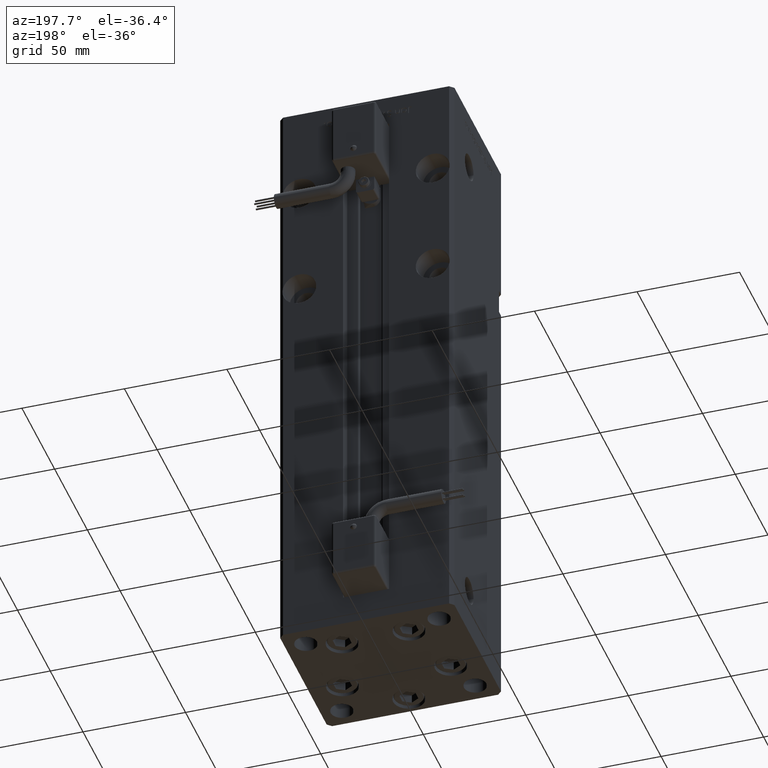
[diagram: clean part render]
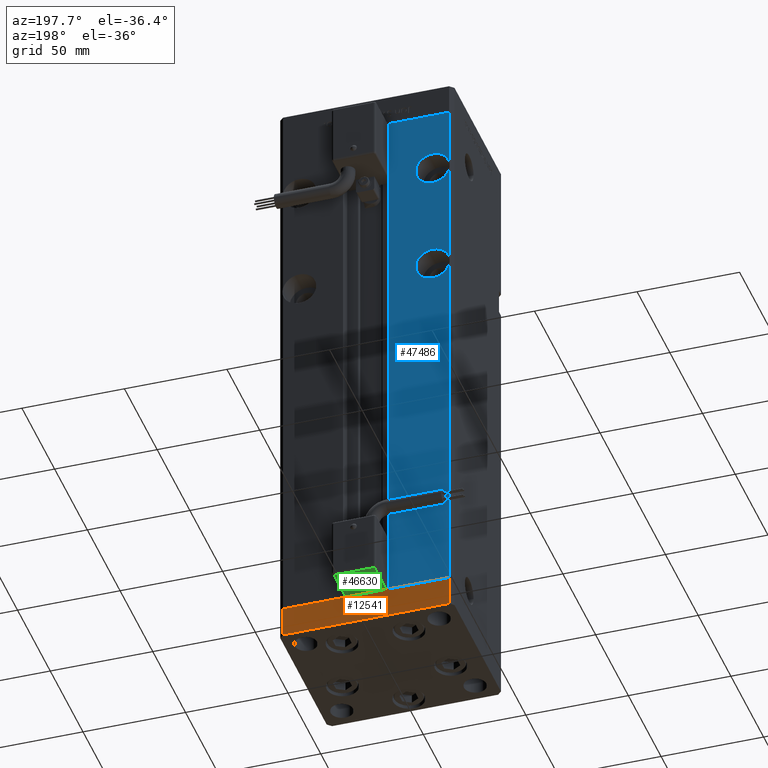
[diagram: same view with three faces highlighted in distinct colors, each labeled with its STEP entity id]
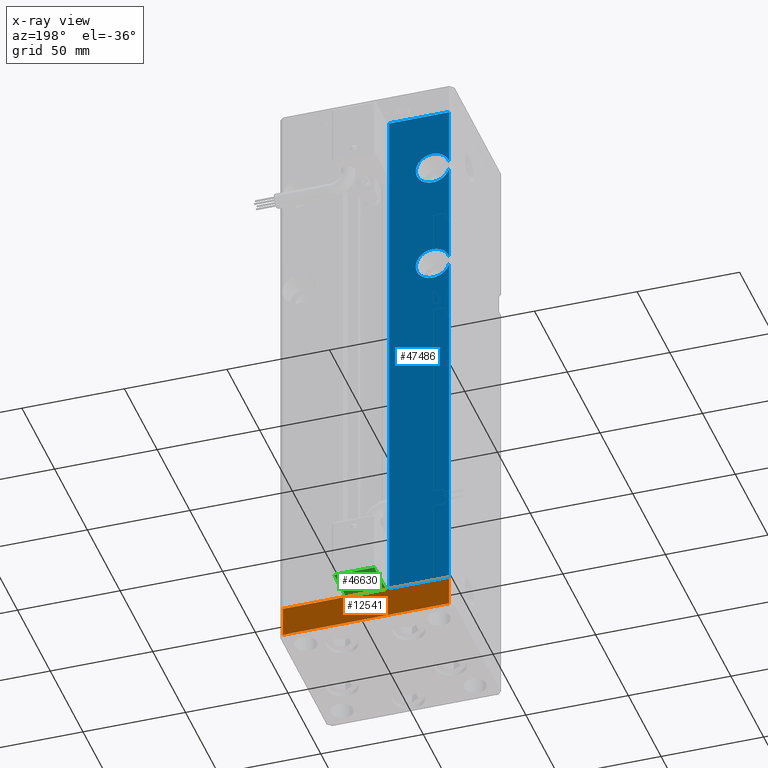
[diagram: x-ray of the same camera — body ghosted, the three highlighted faces saturated]
A machine part, auxiliary view with three faces highlighted in distinct colors.
The next image is the same camera in x-ray (body ghosted, the three faces saturated) — at least one of them is partly hidden behind the body in this view.
Their STEP definitions:

[orange] entity #12541 — the highlighted planar face has unit normal (-0, 1, 0).
#1136 = LINE ( 'NONE', #5675, #53860 ) ;
#1222 = LINE ( 'NONE', #18541, #7428 ) ;
#2709 = ORIENTED_EDGE ( 'NONE', *, *, #26762, .T. ) ;
#2853 = LINE ( 'NONE', #28683, #55256 ) ;
#3969 = EDGE_LOOP ( 'NONE', ( #45116, #52468, #2709, #33529 ) ) ;
#4400 = VERTEX_POINT ( 'NONE', #25975 ) ;
#5675 = CARTESIAN_POINT ( 'NONE',  ( 40.49999999999991473, 37.50000000000000711, 0.000000000000000000 ) ) ;
#6045 = DIRECTION ( 'NONE',  ( 0.000000000000000000, 0.000000000000000000, 1.000000000000000000 ) ) ;
#6901 = CARTESIAN_POINT ( 'NONE',  ( 40.49999999999991473, 37.50000000000000711, 0.000000000000000000 ) ) ;
#7428 = VECTOR ( 'NONE', #6045, 1000.000000000000000 ) ;
#12541 = ADVANCED_FACE ( 'NONE', ( #18771 ), #52285, .T. ) ;
#12561 = CARTESIAN_POINT ( 'NONE',  ( 40.49999999999991473, 37.50000000000000711, -15.00000000000000000 ) ) ;
#13088 = DIRECTION ( 'NONE',  ( -1.000000000000000000, -3.426614273534436165E-16, 0.000000000000000000 ) ) ;
#13959 = CARTESIAN_POINT ( 'NONE',  ( 40.49999999999991473, 37.50000000000000711, -15.00000000000000000 ) ) ;
#15928 = AXIS2_PLACEMENT_3D ( 'NONE', #13959, #49157, #27572 ) ;
#16821 = LINE ( 'NONE', #12561, #42548 ) ;
#17203 = VERTEX_POINT ( 'NONE', #6901 ) ;
#18541 = CARTESIAN_POINT ( 'NONE',  ( -40.50000000000000711, 37.49999999999997868, -15.00000000000000000 ) ) ;
#18771 = FACE_OUTER_BOUND ( 'NONE', #3969, .T. ) ;
#20253 = VERTEX_POINT ( 'NONE', #32555 ) ;
#25975 = CARTESIAN_POINT ( 'NONE',  ( 40.49999999999991473, 37.50000000000000711, -15.00000000000000000 ) ) ;
#25997 = EDGE_CURVE ( 'NONE', #4400, #17203, #16821, .T. ) ;
#26762 = EDGE_CURVE ( 'NONE', #4400, #39615, #2853, .T. ) ;
#27572 = DIRECTION ( 'NONE',  ( -1.000000000000000000, -3.426614273534436165E-16, 0.000000000000000000 ) ) ;
#28683 = CARTESIAN_POINT ( 'NONE',  ( 40.49999999999991473, 37.50000000000000711, -15.00000000000000000 ) ) ;
#29100 = CARTESIAN_POINT ( 'NONE',  ( -40.50000000000000711, 37.49999999999997868, -15.00000000000000000 ) ) ;
#29853 = DIRECTION ( 'NONE',  ( 0.000000000000000000, 0.000000000000000000, 1.000000000000000000 ) ) ;
#32397 = EDGE_CURVE ( 'NONE', #39615, #20253, #1222, .T. ) ;
#32555 = CARTESIAN_POINT ( 'NONE',  ( -40.50000000000000711, 37.49999999999997868, 0.000000000000000000 ) ) ;
#33224 = DIRECTION ( 'NONE',  ( -1.000000000000000000, -3.426614273534436165E-16, 0.000000000000000000 ) ) ;
#33529 = ORIENTED_EDGE ( 'NONE', *, *, #32397, .T. ) ;
#39615 = VERTEX_POINT ( 'NONE', #29100 ) ;
#42548 = VECTOR ( 'NONE', #29853, 1000.000000000000000 ) ;
#45116 = ORIENTED_EDGE ( 'NONE', *, *, #54742, .F. ) ;
#49157 = DIRECTION ( 'NONE',  ( -3.426614273534436165E-16, 1.000000000000000000, 0.000000000000000000 ) ) ;
#52285 = PLANE ( 'NONE',  #15928 ) ;
#52468 = ORIENTED_EDGE ( 'NONE', *, *, #25997, .F. ) ;
#53860 = VECTOR ( 'NONE', #13088, 1000.000000000000000 ) ;
#54742 = EDGE_CURVE ( 'NONE', #17203, #20253, #1136, .T. ) ;
#55256 = VECTOR ( 'NONE', #33224, 1000.000000000000000 ) ;

[blue] entity #47486 — the highlighted planar face has unit normal (0, -1, 0).
#241 = AXIS2_PLACEMENT_3D ( 'NONE', #27296, #23047, #48879 ) ;
#388 = CARTESIAN_POINT ( 'NONE',  ( -32.50000000000000000, 37.50000000000000000, 191.2500000000000284 ) ) ;
#909 = CARTESIAN_POINT ( 'NONE',  ( -32.50000000000000000, 37.50000000000000000, 246.2500000000000284 ) ) ;
#1521 = CARTESIAN_POINT ( 'NONE',  ( -32.50000000000000000, 37.50000000000000000, 238.0000000000000284 ) ) ;
#1561 = CARTESIAN_POINT ( 'NONE',  ( -40.50000000000000711, 37.50000000000000000, 268.5000000000000000 ) ) ;
#2279 = EDGE_CURVE ( 'NONE', #3649, #21832, #17509, .T. ) ;
#2399 = VECTOR ( 'NONE', #46952, 1000.000000000000000 ) ;
#3328 = VERTEX_POINT ( 'NONE', #18079 ) ;
#3649 = VERTEX_POINT ( 'NONE', #4670 ) ;
#3660 = DIRECTION ( 'NONE',  ( 0.000000000000000000, 0.000000000000000000, -1.000000000000000000 ) ) ;
#3848 = VECTOR ( 'NONE', #23551, 1000.000000000000000 ) ;
#3878 = AXIS2_PLACEMENT_3D ( 'NONE', #36625, #53945, #54220 ) ;
#3881 = AXIS2_PLACEMENT_3D ( 'NONE', #47608, #17238, #33420 ) ;
#3889 = AXIS2_PLACEMENT_3D ( 'NONE', #29402, #23760, #46167 ) ;
#4176 = ORIENTED_EDGE ( 'NONE', *, *, #55948, .F. ) ;
#4670 = CARTESIAN_POINT ( 'NONE',  ( -40.50000000000000711, 37.50000000000000000, 185.0155644370746586 ) ) ;
#6049 = LINE ( 'NONE', #23641, #54167 ) ;
#8709 = ORIENTED_EDGE ( 'NONE', *, *, #20177, .F. ) ;
#8742 = CIRCLE ( 'NONE', #37761, 8.250000000000007105 ) ;
#9755 = DIRECTION ( 'NONE',  ( 0.000000000000000000, 0.000000000000000000, -1.000000000000000000 ) ) ;
#10092 = ORIENTED_EDGE ( 'NONE', *, *, #13885, .T. ) ;
#10213 = CIRCLE ( 'NONE', #241, 8.250000000000007105 ) ;
#10217 = LINE ( 'NONE', #36887, #3848 ) ;
#11265 = EDGE_CURVE ( 'NONE', #24301, #45167, #8742, .T. ) ;
#12040 = CIRCLE ( 'NONE', #3878, 8.250000000000007105 ) ;
#13034 = CARTESIAN_POINT ( 'NONE',  ( -32.50000000000000000, 37.50000000000000000, 238.0000000000000284 ) ) ;
#13325 = VERTEX_POINT ( 'NONE', #44128 ) ;
#13885 = EDGE_CURVE ( 'NONE', #38693, #18455, #29471, .T. ) ;
#14387 = ORIENTED_EDGE ( 'NONE', *, *, #55813, .F. ) ;
#14558 = ORIENTED_EDGE ( 'NONE', *, *, #41616, .T. ) ;
#15114 = VERTEX_POINT ( 'NONE', #17214 ) ;
#15711 = CARTESIAN_POINT ( 'NONE',  ( -11.24999999999999822, 37.50000000000000000, 0.000000000000000000 ) ) ;
#16472 = EDGE_CURVE ( 'NONE', #48506, #18455, #6049, .T. ) ;
#16729 = DIRECTION ( 'NONE',  ( 0.000000000000000000, 1.000000000000000000, -0.000000000000000000 ) ) ;
#17214 = CARTESIAN_POINT ( 'NONE',  ( -32.50000000000000000, 37.50000000000000000, 229.7500000000000000 ) ) ;
#17238 = DIRECTION ( 'NONE',  ( 0.000000000000000000, 1.000000000000000000, 0.000000000000000000 ) ) ;
#17509 = CIRCLE ( 'NONE', #3881, 8.250000000000007105 ) ;
#17681 = ORIENTED_EDGE ( 'NONE', *, *, #38528, .F. ) ;
#18079 = CARTESIAN_POINT ( 'NONE',  ( -40.50000000000000711, 37.50000000000000000, 0.000000000000000000 ) ) ;
#18455 = VERTEX_POINT ( 'NONE', #46430 ) ;
#20177 = EDGE_CURVE ( 'NONE', #13325, #3328, #51481, .T. ) ;
#20774 = PLANE ( 'NONE',  #21837 ) ;
#20792 = LINE ( 'NONE', #15711, #49327 ) ;
#20966 = CARTESIAN_POINT ( 'NONE',  ( -11.24999999999999822, 37.50000000000000000, 268.5000000000000000 ) ) ;
#21115 = CARTESIAN_POINT ( 'NONE',  ( -40.50000000000000711, 37.50000000000000000, 268.5000000000000000 ) ) ;
#21832 = VERTEX_POINT ( 'NONE', #388 ) ;
#21837 = AXIS2_PLACEMENT_3D ( 'NONE', #51692, #50589, #55984 ) ;
#23047 = DIRECTION ( 'NONE',  ( 0.000000000000000000, 1.000000000000000000, -0.000000000000000000 ) ) ;
#23551 = DIRECTION ( 'NONE',  ( -0.000000000000000000, -0.000000000000000000, -1.000000000000000000 ) ) ;
#23641 = CARTESIAN_POINT ( 'NONE',  ( -11.24999999999999822, 37.50000000000000000, 0.000000000000000000 ) ) ;
#23760 = DIRECTION ( 'NONE',  ( 0.000000000000000000, 1.000000000000000000, 0.000000000000000000 ) ) ;
#24301 = VERTEX_POINT ( 'NONE', #39547 ) ;
#24758 = FACE_OUTER_BOUND ( 'NONE', #54545, .T. ) ;
#27296 = CARTESIAN_POINT ( 'NONE',  ( -32.50000000000000000, 37.50000000000000000, 238.0000000000000284 ) ) ;
#27899 = DIRECTION ( 'NONE',  ( -0.000000000000000000, -0.000000000000000000, 1.000000000000000000 ) ) ;
#28638 = DIRECTION ( 'NONE',  ( -0.000000000000000000, -0.000000000000000000, -1.000000000000000000 ) ) ;
#29394 = ORIENTED_EDGE ( 'NONE', *, *, #38430, .F. ) ;
#29402 = CARTESIAN_POINT ( 'NONE',  ( -32.50000000000000000, 37.50000000000000000, 183.0000000000000284 ) ) ;
#29471 = LINE ( 'NONE', #20966, #41340 ) ;
#30142 = VECTOR ( 'NONE', #28638, 1000.000000000000000 ) ;
#31031 = DIRECTION ( 'NONE',  ( 0.000000000000000000, 1.000000000000000000, -0.000000000000000000 ) ) ;
#32891 = AXIS2_PLACEMENT_3D ( 'NONE', #13034, #16729, #3660 ) ;
#32900 = CARTESIAN_POINT ( 'NONE',  ( -40.50000000000000711, 37.50000000000000000, 268.5000000000000000 ) ) ;
#33420 = DIRECTION ( 'NONE',  ( 0.000000000000000000, 0.000000000000000000, 1.000000000000000000 ) ) ;
#34578 = DIRECTION ( 'NONE',  ( 1.000000000000000000, 0.000000000000000000, 0.000000000000000000 ) ) ;
#35618 = CIRCLE ( 'NONE', #3889, 8.250000000000007105 ) ;
#36508 = CIRCLE ( 'NONE', #32891, 8.250000000000007105 ) ;
#36625 = CARTESIAN_POINT ( 'NONE',  ( -32.50000000000000000, 37.50000000000000000, 183.0000000000000284 ) ) ;
#36887 = CARTESIAN_POINT ( 'NONE',  ( -40.50000000000000711, 37.50000000000000000, 268.5000000000000000 ) ) ;
#37761 = AXIS2_PLACEMENT_3D ( 'NONE', #1521, #31031, #9755 ) ;
#38089 = ORIENTED_EDGE ( 'NONE', *, *, #16472, .F. ) ;
#38430 = EDGE_CURVE ( 'NONE', #38693, #24301, #10217, .T. ) ;
#38439 = ORIENTED_EDGE ( 'NONE', *, *, #52143, .F. ) ;
#38528 = EDGE_CURVE ( 'NONE', #46326, #3649, #53641, .T. ) ;
#38693 = VERTEX_POINT ( 'NONE', #1561 ) ;
#39547 = CARTESIAN_POINT ( 'NONE',  ( -40.50000000000000711, 37.50000000000000000, 240.0155644370746302 ) ) ;
#40185 = CARTESIAN_POINT ( 'NONE',  ( -32.50000000000000000, 37.50000000000000000, 174.7500000000000284 ) ) ;
#40895 = ORIENTED_EDGE ( 'NONE', *, *, #51420, .F. ) ;
#41207 = VERTEX_POINT ( 'NONE', #40185 ) ;
#41340 = VECTOR ( 'NONE', #34578, 1000.000000000000000 ) ;
#41616 = EDGE_CURVE ( 'NONE', #48506, #3328, #20792, .T. ) ;
#43212 = ORIENTED_EDGE ( 'NONE', *, *, #11265, .F. ) ;
#44128 = CARTESIAN_POINT ( 'NONE',  ( -40.50000000000000711, 37.50000000000000000, 180.9844355629253982 ) ) ;
#45167 = VERTEX_POINT ( 'NONE', #909 ) ;
#45982 = CARTESIAN_POINT ( 'NONE',  ( -11.24999999999999822, 37.50000000000000000, 0.000000000000000000 ) ) ;
#46167 = DIRECTION ( 'NONE',  ( 0.000000000000000000, 0.000000000000000000, 1.000000000000000000 ) ) ;
#46326 = VERTEX_POINT ( 'NONE', #53648 ) ;
#46430 = CARTESIAN_POINT ( 'NONE',  ( -11.24999999999999822, 37.50000000000000000, 268.5000000000000000 ) ) ;
#46952 = DIRECTION ( 'NONE',  ( -0.000000000000000000, -0.000000000000000000, -1.000000000000000000 ) ) ;
#47209 = ORIENTED_EDGE ( 'NONE', *, *, #2279, .F. ) ;
#47486 = ADVANCED_FACE ( 'NONE', ( #24758 ), #20774, .F. ) ;
#47608 = CARTESIAN_POINT ( 'NONE',  ( -32.50000000000000000, 37.50000000000000000, 183.0000000000000284 ) ) ;
#48506 = VERTEX_POINT ( 'NONE', #45982 ) ;
#48879 = DIRECTION ( 'NONE',  ( 0.000000000000000000, 0.000000000000000000, -1.000000000000000000 ) ) ;
#49327 = VECTOR ( 'NONE', #50055, 1000.000000000000000 ) ;
#50055 = DIRECTION ( 'NONE',  ( -1.000000000000000000, 0.000000000000000000, 0.000000000000000000 ) ) ;
#50589 = DIRECTION ( 'NONE',  ( 0.000000000000000000, -1.000000000000000000, 0.000000000000000000 ) ) ;
#51420 = EDGE_CURVE ( 'NONE', #45167, #15114, #10213, .T. ) ;
#51481 = LINE ( 'NONE', #21115, #2399 ) ;
#51692 = CARTESIAN_POINT ( 'NONE',  ( -11.24999999999999822, 37.50000000000000000, 268.5000000000000000 ) ) ;
#52143 = EDGE_CURVE ( 'NONE', #21832, #41207, #35618, .T. ) ;
#53641 = LINE ( 'NONE', #32900, #30142 ) ;
#53648 = CARTESIAN_POINT ( 'NONE',  ( -40.50000000000000711, 37.50000000000000000, 235.9844355629253982 ) ) ;
#53945 = DIRECTION ( 'NONE',  ( 0.000000000000000000, 1.000000000000000000, 0.000000000000000000 ) ) ;
#54167 = VECTOR ( 'NONE', #27899, 1000.000000000000000 ) ;
#54220 = DIRECTION ( 'NONE',  ( 0.000000000000000000, 0.000000000000000000, 1.000000000000000000 ) ) ;
#54545 = EDGE_LOOP ( 'NONE', ( #17681, #4176, #40895, #43212, #29394, #10092, #38089, #14558, #8709, #14387, #38439, #47209 ) ) ;
#55813 = EDGE_CURVE ( 'NONE', #41207, #13325, #12040, .T. ) ;
#55948 = EDGE_CURVE ( 'NONE', #15114, #46326, #36508, .T. ) ;
#55984 = DIRECTION ( 'NONE',  ( 0.000000000000000000, -0.000000000000000000, -1.000000000000000000 ) ) ;

[green] entity #46630 — the highlighted planar face has unit normal (-0, 0, 1).
#1518 = CARTESIAN_POINT ( 'NONE',  ( -9.799999999999998934, 27.00000000000000000, -25.00000000000000000 ) ) ;
#4485 = VECTOR ( 'NONE', #28579, 1000.000000000000000 ) ;
#5180 = CARTESIAN_POINT ( 'NONE',  ( 10.80000000000000071, 50.50000000000000000, -25.00000000000000000 ) ) ;
#5504 = AXIS2_PLACEMENT_3D ( 'NONE', #7920, #29475, #51335 ) ;
#7920 = CARTESIAN_POINT ( 'NONE',  ( 10.80000000000000071, 51.50000000000000000, -25.00000000000000000 ) ) ;
#8087 = ORIENTED_EDGE ( 'NONE', *, *, #45677, .T. ) ;
#8429 = ORIENTED_EDGE ( 'NONE', *, *, #44121, .T. ) ;
#9166 = VECTOR ( 'NONE', #40084, 1000.000000000000000 ) ;
#10112 = LINE ( 'NONE', #14659, #13064 ) ;
#10963 = DIRECTION ( 'NONE',  ( -3.108624468950000014E-32, 1.000000000000000000, 1.400000000000000069E-16 ) ) ;
#11294 = CARTESIAN_POINT ( 'NONE',  ( -9.799999999999998934, 51.50000000000000000, -25.00000000000000000 ) ) ;
#12741 = PLANE ( 'NONE',  #5504 ) ;
#13064 = VECTOR ( 'NONE', #10963, 1000.000000000000000 ) ;
#14515 = VECTOR ( 'NONE', #42527, 1000.000000000000000 ) ;
#14659 = CARTESIAN_POINT ( 'NONE',  ( 9.799999999999998934, 51.50000000000000000, -25.00000000000000000 ) ) ;
#16229 = ORIENTED_EDGE ( 'NONE', *, *, #42146, .T. ) ;
#16433 = LINE ( 'NONE', #56168, #14515 ) ;
#21209 = VERTEX_POINT ( 'NONE', #52320 ) ;
#22891 = VERTEX_POINT ( 'NONE', #1518 ) ;
#26755 = LINE ( 'NONE', #5180, #9166 ) ;
#27732 = ORIENTED_EDGE ( 'NONE', *, *, #31348, .T. ) ;
#28364 = VERTEX_POINT ( 'NONE', #29951 ) ;
#28579 = DIRECTION ( 'NONE',  ( 3.108624468950000014E-32, -1.000000000000000000, -1.400000000000000069E-16 ) ) ;
#29475 = DIRECTION ( 'NONE',  ( 2.220446049250000002E-16, 1.400000000000000069E-16, -1.000000000000000000 ) ) ;
#29951 = CARTESIAN_POINT ( 'NONE',  ( 9.799999999999998934, 50.50000000000000000, -25.00000000000000000 ) ) ;
#31348 = EDGE_CURVE ( 'NONE', #28364, #21209, #26755, .T. ) ;
#34080 = CARTESIAN_POINT ( 'NONE',  ( 9.799999999999998934, 27.00000000000000000, -25.00000000000000000 ) ) ;
#37666 = LINE ( 'NONE', #11294, #4485 ) ;
#38341 = VERTEX_POINT ( 'NONE', #34080 ) ;
#40084 = DIRECTION ( 'NONE',  ( -1.000000000000000000, 0.000000000000000000, -2.220446049250000002E-16 ) ) ;
#41097 = EDGE_LOOP ( 'NONE', ( #8429, #8087, #16229, #27732 ) ) ;
#42146 = EDGE_CURVE ( 'NONE', #38341, #28364, #10112, .T. ) ;
#42527 = DIRECTION ( 'NONE',  ( 1.000000000000000000, 0.000000000000000000, 2.220446049250000002E-16 ) ) ;
#44121 = EDGE_CURVE ( 'NONE', #21209, #22891, #37666, .T. ) ;
#45677 = EDGE_CURVE ( 'NONE', #22891, #38341, #16433, .T. ) ;
#46630 = ADVANCED_FACE ( 'NONE', ( #51614 ), #12741, .F. ) ;
#51335 = DIRECTION ( 'NONE',  ( 0.000000000000000000, -1.000000000000000000, -1.400000000000000069E-16 ) ) ;
#51614 = FACE_OUTER_BOUND ( 'NONE', #41097, .T. ) ;
#52320 = CARTESIAN_POINT ( 'NONE',  ( -9.799999999999998934, 50.50000000000000000, -25.00000000000000000 ) ) ;
#56168 = CARTESIAN_POINT ( 'NONE',  ( 10.80000000000000071, 27.00000000000000000, -25.00000000000000000 ) ) ;